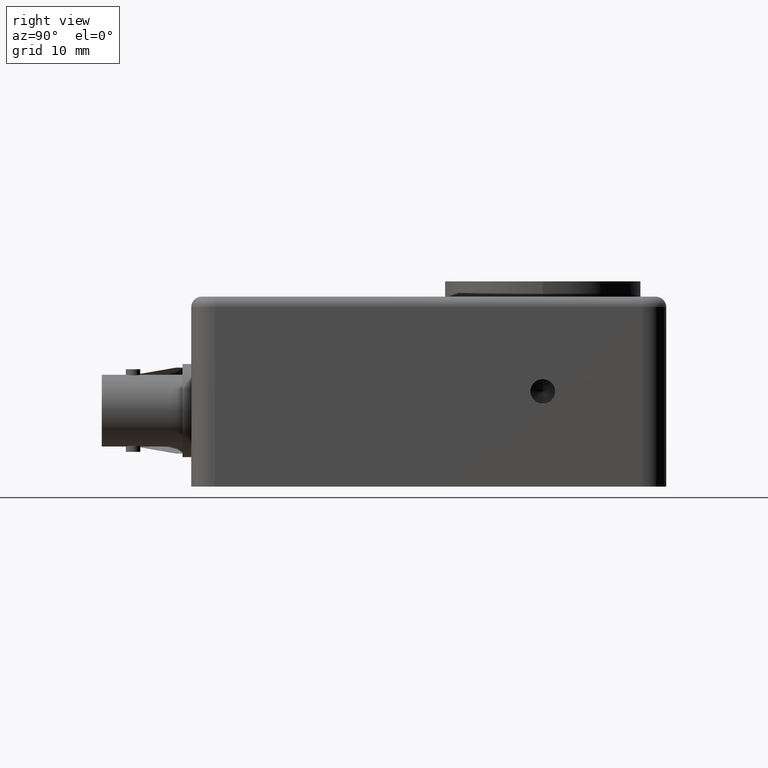
[diagram: clean part render]
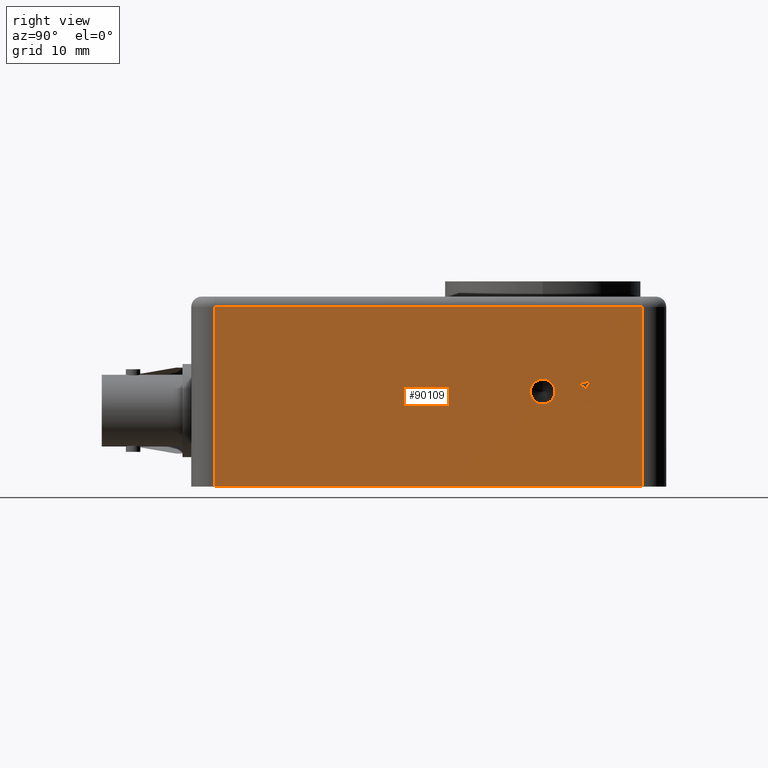
[diagram: same view with one face highlighted and labeled with its STEP entity id]
A machine part, right view. The second image highlights one B-rep face of the part: STEP entity #90109.
In plain terms, the highlighted planar face has unit normal (-1, 0, 0).
Its self-contained STEP definition (entity closure, byte-faithful):
#263 = ORIENTED_EDGE ( 'NONE', *, *, #114979, .T. ) ;
#1182 = EDGE_CURVE ( 'NONE', #93896, #24893, #92600, .T. ) ;
#1186 = CARTESIAN_POINT ( 'NONE',  ( 50.79999999999999700, 51.84900878906250900, 12.84817223182091600 ) ) ;
#1234 = AXIS2_PLACEMENT_3D ( 'NONE', #87532, #27407, #97653 ) ;
#1742 = ORIENTED_EDGE ( 'NONE', *, *, #40965, .T. ) ;
#1819 = CARTESIAN_POINT ( 'NONE',  ( 50.79999999999999700, 53.01463034605370000, 13.02597891000601000 ) ) ;
#1941 = EDGE_CURVE ( 'NONE', #111609, #121612, #109748, .T. ) ;
#3223 = FACE_BOUND ( 'NONE', #78868, .T. ) ;
#3883 = LINE ( 'NONE', #97766, #81049 ) ;
#4082 = VECTOR ( 'NONE', #27273, 1000.000000000000000 ) ;
#4165 = CARTESIAN_POINT ( 'NONE',  ( 50.79999999999999700, 53.39000000000001500, 12.63085295848357600 ) ) ;
#4315 = LINE ( 'NONE', #105300, #31183 ) ;
#4997 = CARTESIAN_POINT ( 'NONE',  ( 50.80000000000002600, 53.00050867909609300, 12.05985116965619700 ) ) ;
#5575 = LINE ( 'NONE', #27299, #59178 ) ;
#6118 = VECTOR ( 'NONE', #31743, 1000.000000000000000 ) ;
#6370 = EDGE_CURVE ( 'NONE', #50864, #97844, #86501, .T. ) ;
#6762 = ORIENTED_EDGE ( 'NONE', *, *, #47579, .T. ) ;
#6820 = VERTEX_POINT ( 'NONE', #109908 ) ;
#7238 = CARTESIAN_POINT ( 'NONE',  ( 50.79999999999999700, 53.39000000000001500, 11.36644991361178100 ) ) ;
#7703 = LINE ( 'NONE', #78571, #34556 ) ;
#8018 = VECTOR ( 'NONE', #23353, 1000.000000000000000 ) ;
#8026 = DIRECTION ( 'NONE',  ( 0.0000000000000000000, -0.9542223647567404900, -0.2990981086500783000 ) ) ;
#8139 = DIRECTION ( 'NONE',  ( 0.0000000000000000000, 0.9537054296867861800, -0.3007423372023678700 ) ) ;
#8274 = ORIENTED_EDGE ( 'NONE', *, *, #1941, .T. ) ;
#9249 = CARTESIAN_POINT ( 'NONE',  ( 50.79999999999999700, 52.81706737029247700, 13.89525600335536900 ) ) ;
#9691 = ORIENTED_EDGE ( 'NONE', *, *, #113275, .T. ) ;
#9730 = B_SPLINE_CURVE_WITH_KNOTS ( 'NONE', 3,
 ( #55276, #115318, #65280, #4997, #75388, #15206, #85491, #25312, #95587, #35444, #105714 ),
 .UNSPECIFIED., .F., .F.,
 ( 4, 1, 1, 1, 1, 1, 1, 1, 4 ),
 ( 0.0000000000000000000, 0.1625255217041981800, 0.3143148980392358500, 0.4549784905465674200, 0.5845192373661913800, 0.7045671033090664700, 0.8134949897289298600, 0.9116812596825915000, 1.000000000000000000 ),
 .UNSPECIFIED. ) ;
#10442 = CARTESIAN_POINT ( 'NONE',  ( 50.79999999999999700, 53.39000000000001500, 12.63085295848357600 ) ) ;
#10480 = EDGE_CURVE ( 'NONE', #48661, #90205, #30637, .T. ) ;
#10806 = AXIS2_PLACEMENT_3D ( 'NONE', #109630, #49501, #119701 ) ;
#11200 = ORIENTED_EDGE ( 'NONE', *, *, #92336, .T. ) ;
#11281 = CARTESIAN_POINT ( 'NONE',  ( 50.79999999999999700, 53.15662873488207700, 12.10731107271634800 ) ) ;
#11624 = ORIENTED_EDGE ( 'NONE', *, *, #39245, .T. ) ;
#13196 = VECTOR ( 'NONE', #82501, 1000.000000000000000 ) ;
#13576 = LINE ( 'NONE', #1186, #117281 ) ;
#13662 = VECTOR ( 'NONE', #53393, 1000.000000000000100 ) ;
#13751 = LINE ( 'NONE', #4165, #117458 ) ;
#14542 = VERTEX_POINT ( 'NONE', #31513 ) ;
#14719 = VERTEX_POINT ( 'NONE', #76267 ) ;
#15206 = CARTESIAN_POINT ( 'NONE',  ( 50.80000000000002600, 53.06177342757432300, 12.07865284460011600 ) ) ;
#16147 = VERTEX_POINT ( 'NONE', #100775 ) ;
#16168 = VECTOR ( 'NONE', #31442, 1000.000000000000000 ) ;
#16439 = CARTESIAN_POINT ( 'NONE',  ( 50.79999999999999700, 53.39000000000001500, 11.58376918694912000 ) ) ;
#16548 = CARTESIAN_POINT ( 'NONE',  ( 50.79999999999999700, 51.84900878906250900, 11.69335490006667100 ) ) ;
#17294 = VECTOR ( 'NONE', #54353, 1000.000000000000000 ) ;
#18137 = ORIENTED_EDGE ( 'NONE', *, *, #56225, .T. ) ;
#18256 = CARTESIAN_POINT ( 'NONE',  ( 50.79999999999999700, 51.84900878906250900, 12.52404547471266800 ) ) ;
#18984 = CARTESIAN_POINT ( 'NONE',  ( 50.79999999999999700, 60.32500000000000300, 0.0000000000000000000 ) ) ;
#19401 = VECTOR ( 'NONE', #8026, 1000.000000000000200 ) ;
#19899 = VERTEX_POINT ( 'NONE', #113420 ) ;
#20401 = VERTEX_POINT ( 'NONE', #30770 ) ;
#20407 = B_SPLINE_CURVE_WITH_KNOTS ( 'NONE', 3,
 ( #11281, #71515, #61440, #81649, #21453, #91716, #31564, #101833, #41677, #111920, #51816 ),
 .UNSPECIFIED., .F., .F.,
 ( 4, 1, 1, 1, 1, 1, 1, 1, 4 ),
 ( 0.0000000000000000000, 0.08920477023325861000, 0.1898334556643427300, 0.2992325919749805300, 0.4192609378429036900, 0.5492073901909311200, 0.6890743636843575900, 0.8395791979483122600, 1.000000000000000000 ),
 .UNSPECIFIED. ) ;
#20624 = VERTEX_POINT ( 'NONE', #7238 ) ;
#20876 = VERTEX_POINT ( 'NONE', #39411 ) ;
#21207 = CARTESIAN_POINT ( 'NONE',  ( 50.79999999999999700, 53.39000000000001500, 12.21967501518054000 ) ) ;
#21453 = CARTESIAN_POINT ( 'NONE',  ( 50.80000000000001100, 53.08225049739456100, 12.12935888250398600 ) ) ;
#21529 = EDGE_CURVE ( 'NONE', #32920, #109498, #61633, .T. ) ;
#21953 = DIRECTION ( 'NONE',  ( 0.0000000000000000000, 1.000000000000000000, 0.0000000000000000000 ) ) ;
#23340 = CARTESIAN_POINT ( 'NONE',  ( 50.79999999999999700, 53.39000000000001500, 13.69769302759415400 ) ) ;
#23353 = DIRECTION ( 'NONE',  ( 0.0000000000000000000, 1.000000000000000000, 0.0000000000000000000 ) ) ;
#24893 = VERTEX_POINT ( 'NONE', #45958 ) ;
#24971 = EDGE_CURVE ( 'NONE', #62225, #16147, #42192, .T. ) ;
#25312 = CARTESIAN_POINT ( 'NONE',  ( 50.80000000000003300, 53.11354737319423700, 12.09434083099387500 ) ) ;
#25336 = ORIENTED_EDGE ( 'NONE', *, *, #104084, .T. ) ;
#26803 = CARTESIAN_POINT ( 'NONE',  ( 50.79999999999999700, 53.39000000000001500, 12.84817223182091600 ) ) ;
#26840 = CARTESIAN_POINT ( 'NONE',  ( 50.79999999999999700, 53.01463034605370000, 13.69769302759415400 ) ) ;
#27273 = DIRECTION ( 'NONE',  ( 0.0000000000000000000, 0.0000000000000000000, -1.000000000000000000 ) ) ;
#27299 = CARTESIAN_POINT ( 'NONE',  ( 50.79999999999999700, 52.08608435997597800, 11.58376918694912000 ) ) ;
#27407 = DIRECTION ( 'NONE',  ( -1.000000000000000000, 0.0000000000000000000, 0.0000000000000000000 ) ) ;
#29983 = EDGE_CURVE ( 'NONE', #68009, #94733, #72824, .T. ) ;
#30095 = FACE_OUTER_BOUND ( 'NONE', #91448, .T. ) ;
#30637 = LINE ( 'NONE', #129192, #84083 ) ;
#30770 = CARTESIAN_POINT ( 'NONE',  ( 50.79999999999999700, 46.99000000000000200, 11.05000000000000100 ) ) ;
#30776 = EDGE_CURVE ( 'NONE', #51454, #48661, #34078, .T. ) ;
#31183 = VECTOR ( 'NONE', #55289, 1000.000000000000000 ) ;
#31442 = DIRECTION ( 'NONE',  ( 0.0000000000000000000, 0.0000000000000000000, 1.000000000000000000 ) ) ;
#31513 = CARTESIAN_POINT ( 'NONE',  ( 50.79999999999999700, 52.81706737029247700, 13.89525600335536900 ) ) ;
#31564 = CARTESIAN_POINT ( 'NONE',  ( 50.80000000000001800, 53.02124263738453200, 12.14865967371087800 ) ) ;
#31743 = DIRECTION ( 'NONE',  ( 0.0000000000000000000, 1.000000000000000000, 0.0000000000000000000 ) ) ;
#32882 = DIRECTION ( 'NONE',  ( 0.0000000000000000000, 1.000000000000000000, 0.0000000000000000000 ) ) ;
#32920 = VERTEX_POINT ( 'NONE', #128685 ) ;
#34078 = LINE ( 'NONE', #26840, #4082 ) ;
#34556 = VECTOR ( 'NONE', #8139, 999.9999999999998900 ) ;
#35444 = CARTESIAN_POINT ( 'NONE',  ( 50.80000000000001100, 53.14993335621799300, 12.10537956312075500 ) ) ;
#35561 = CARTESIAN_POINT ( 'NONE',  ( 50.79999999999999700, 51.84900878906250900, 11.69335490006667100 ) ) ;
#35957 = EDGE_CURVE ( 'NONE', #106494, #83055, #20407, .T. ) ;
#35988 = CARTESIAN_POINT ( 'NONE',  ( 50.79999999999999700, 3.174999999999999800, 24.00300000000000000 ) ) ;
#36028 = CARTESIAN_POINT ( 'NONE',  ( 50.79999999999999700, 53.01463034605370000, 13.89525600335536900 ) ) ;
#36668 = DIRECTION ( 'NONE',  ( 0.0000000000000000000, 0.0000000000000000000, -1.000000000000000000 ) ) ;
#37031 = LINE ( 'NONE', #16548, #63747 ) ;
#37762 = ORIENTED_EDGE ( 'NONE', *, *, #126794, .F. ) ;
#37950 = LINE ( 'NONE', #9249, #91367 ) ;
#38586 = ORIENTED_EDGE ( 'NONE', *, *, #120956, .T. ) ;
#38753 = CARTESIAN_POINT ( 'NONE',  ( 50.79999999999999700, 53.01463034605370000, 13.69769302759415400 ) ) ;
#39245 = EDGE_CURVE ( 'NONE', #109498, #41926, #102051, .T. ) ;
#39411 = CARTESIAN_POINT ( 'NONE',  ( 50.79999999999999700, 51.86876508663863900, 13.75696192032251700 ) ) ;
#40583 = VECTOR ( 'NONE', #93607, 1000.000000000000000 ) ;
#40965 = EDGE_CURVE ( 'NONE', #49859, #6820, #13751, .T. ) ;
#41377 = VECTOR ( 'NONE', #36668, 1000.000000000000000 ) ;
#41506 = CARTESIAN_POINT ( 'NONE',  ( 50.79999999999999700, 52.93035738920555400, 12.03785533905029400 ) ) ;
#41677 = CARTESIAN_POINT ( 'NONE',  ( 50.80000000000000400, 52.95025666909091200, 12.17092567420790600 ) ) ;
#41926 = VERTEX_POINT ( 'NONE', #117678 ) ;
#42112 = DIRECTION ( 'NONE',  ( 0.0000000000000000000, 0.0000000000000000000, -1.000000000000000000 ) ) ;
#42192 = LINE ( 'NONE', #18256, #95578 ) ;
#42975 = ORIENTED_EDGE ( 'NONE', *, *, #73848, .T. ) ;
#43004 = CARTESIAN_POINT ( 'NONE',  ( 50.79999999999999700, 51.86876508663863900, 13.89525600335536900 ) ) ;
#43673 = CARTESIAN_POINT ( 'NONE',  ( 50.79999999999999700, 52.91183586022793900, 12.18294064937493800 ) ) ;
#44357 = DIRECTION ( 'NONE',  ( -0.0000000000000000000, -0.0000000000000000000, 1.000000000000000000 ) ) ;
#44549 = VECTOR ( 'NONE', #50683, 1000.000000000000000 ) ;
#45221 = ORIENTED_EDGE ( 'NONE', *, *, #21529, .T. ) ;
#45958 = CARTESIAN_POINT ( 'NONE',  ( 50.79999999999999700, 53.39000000000001500, 13.69769302759415400 ) ) ;
#46066 = LINE ( 'NONE', #81525, #16168 ) ;
#46165 = DIRECTION ( 'NONE',  ( 0.0000000000000000000, 0.0000000000000000000, -1.000000000000000000 ) ) ;
#46582 = CARTESIAN_POINT ( 'NONE',  ( 50.79999999999999700, 53.01463034605370000, 14.09281897911658800 ) ) ;
#47460 = ORIENTED_EDGE ( 'NONE', *, *, #1182, .T. ) ;
#47579 = EDGE_CURVE ( 'NONE', #121612, #93896, #86354, .T. ) ;
#48661 = VERTEX_POINT ( 'NONE', #1819 ) ;
#49272 = EDGE_CURVE ( 'NONE', #77368, #111609, #67556, .T. ) ;
#49373 = LINE ( 'NONE', #43004, #76042 ) ;
#49501 = DIRECTION ( 'NONE',  ( 1.000000000000000000, -0.0000000000000000000, -0.0000000000000000000 ) ) ;
#49859 = VERTEX_POINT ( 'NONE', #10442 ) ;
#50683 = DIRECTION ( 'NONE',  ( 0.0000000000000000000, 0.0000000000000000000, -1.000000000000000000 ) ) ;
#50864 = VERTEX_POINT ( 'NONE', #110801 ) ;
#51201 = ORIENTED_EDGE ( 'NONE', *, *, #6370, .T. ) ;
#51454 = VERTEX_POINT ( 'NONE', #38753 ) ;
#51816 = CARTESIAN_POINT ( 'NONE',  ( 50.79999999999999700, 52.91183586022793900, 12.18294064937493800 ) ) ;
#51858 = VERTEX_POINT ( 'NONE', #35988 ) ;
#52646 = VERTEX_POINT ( 'NONE', #117265 ) ;
#53072 = DIRECTION ( 'NONE',  ( 1.000000000000000000, -0.0000000000000000000, -0.0000000000000000000 ) ) ;
#53393 = DIRECTION ( 'NONE',  ( 0.0000000000000000000, -0.7920101971969320000, 0.6105078603393053700 ) ) ;
#53691 = VERTEX_POINT ( 'NONE', #41506 ) ;
#54353 = DIRECTION ( 'NONE',  ( 0.0000000000000000000, 1.000000000000000000, 0.0000000000000000000 ) ) ;
#55276 = CARTESIAN_POINT ( 'NONE',  ( 50.79999999999999700, 52.93035738920555400, 12.03785533905029400 ) ) ;
#55289 = DIRECTION ( 'NONE',  ( 0.0000000000000000000, 0.0000000000000000000, -1.000000000000000000 ) ) ;
#56225 = EDGE_CURVE ( 'NONE', #53691, #106494, #9730, .T. ) ;
#56898 = DIRECTION ( 'NONE',  ( 0.0000000000000000000, -0.9521637063517167700, 0.3055884099676581800 ) ) ;
#58224 = VECTOR ( 'NONE', #78459, 1000.000000000000000 ) ;
#58303 = CARTESIAN_POINT ( 'NONE',  ( 50.79999999999999700, 53.39000000000001500, 11.99247759305514200 ) ) ;
#58545 = LINE ( 'NONE', #66905, #82085 ) ;
#59178 = VECTOR ( 'NONE', #97537, 1000.000000000000000 ) ;
#59411 = ORIENTED_EDGE ( 'NONE', *, *, #10480, .T. ) ;
#60247 = EDGE_CURVE ( 'NONE', #20876, #14719, #46066, .T. ) ;
#61181 = EDGE_CURVE ( 'NONE', #19899, #49859, #95947, .T. ) ;
#61334 = AXIS2_PLACEMENT_3D ( 'NONE', #113142, #53072, #123273 ) ;
#61440 = CARTESIAN_POINT ( 'NONE',  ( 50.80000000000000400, 53.13376699398033800, 12.11404033021927700 ) ) ;
#61633 = LINE ( 'NONE', #113796, #8018 ) ;
#62225 = VERTEX_POINT ( 'NONE', #120742 ) ;
#63747 = VECTOR ( 'NONE', #66582, 1000.000000000000100 ) ;
#65280 = CARTESIAN_POINT ( 'NONE',  ( 50.79999999999999000, 52.96629757503276900, 12.04897862231336700 ) ) ;
#66126 = EDGE_CURVE ( 'NONE', #20401, #82601, #123491, .T. ) ;
#66504 = CARTESIAN_POINT ( 'NONE',  ( 50.79999999999999700, 53.39000000000001500, 13.89525600335536900 ) ) ;
#66582 = DIRECTION ( 'NONE',  ( 0.0000000000000000000, 0.9528149773632901300, 0.3035516742042331200 ) ) ;
#66905 = CARTESIAN_POINT ( 'NONE',  ( 50.79999999999999700, 52.91183586022793900, 12.18294064937493800 ) ) ;
#67351 = PLANE ( 'NONE',  #1234 ) ;
#67556 = LINE ( 'NONE', #124486, #17294 ) ;
#68009 = VERTEX_POINT ( 'NONE', #94572 ) ;
#68069 = LINE ( 'NONE', #16439, #41377 ) ;
#68227 = CARTESIAN_POINT ( 'NONE',  ( 50.79999999999999700, 52.81706737029247700, 13.02597891000601000 ) ) ;
#68789 = ORIENTED_EDGE ( 'NONE', *, *, #102338, .T. ) ;
#70868 = ORIENTED_EDGE ( 'NONE', *, *, #123483, .T. ) ;
#71515 = CARTESIAN_POINT ( 'NONE',  ( 50.80000000000000400, 53.14932014360318400, 12.10946232589128100 ) ) ;
#72824 = LINE ( 'NONE', #58303, #19401 ) ;
#73848 = EDGE_CURVE ( 'NONE', #20624, #50864, #3883, .T. ) ;
#75388 = CARTESIAN_POINT ( 'NONE',  ( 50.79999999999996900, 53.03230023188007200, 12.06974336500306900 ) ) ;
#76042 = VECTOR ( 'NONE', #32882, 1000.000000000000000 ) ;
#76267 = CARTESIAN_POINT ( 'NONE',  ( 50.79999999999999700, 51.86876508663863900, 13.89525600335536900 ) ) ;
#77368 = VERTEX_POINT ( 'NONE', #126722 ) ;
#77427 = ORIENTED_EDGE ( 'NONE', *, *, #30776, .T. ) ;
#78420 = CARTESIAN_POINT ( 'NONE',  ( 50.79999999999999700, 53.01463034605370000, 13.89525600335536900 ) ) ;
#78459 = DIRECTION ( 'NONE',  ( 0.0000000000000000000, 0.0000000000000000000, 1.000000000000000000 ) ) ;
#78571 = CARTESIAN_POINT ( 'NONE',  ( 50.79999999999999700, 52.08608435997597800, 12.63085295848357600 ) ) ;
#78868 = EDGE_LOOP ( 'NONE', ( #47460, #122747, #77427, #59411, #100863, #79175, #83534, #124715, #87866, #8274, #6762 ) ) ;
#79043 = CARTESIAN_POINT ( 'NONE',  ( 50.79999999999999700, 53.01463034605370000, 14.09281897911658800 ) ) ;
#79175 = ORIENTED_EDGE ( 'NONE', *, *, #60247, .T. ) ;
#79347 = CARTESIAN_POINT ( 'NONE',  ( 50.79999999999999700, 51.84900878906250900, 11.36644991361178100 ) ) ;
#79640 = DIRECTION ( 'NONE',  ( 0.0000000000000000000, 0.0000000000000000000, 1.000000000000000000 ) ) ;
#80423 = EDGE_CURVE ( 'NONE', #90205, #20876, #90658, .T. ) ;
#81049 = VECTOR ( 'NONE', #118377, 1000.000000000000000 ) ;
#81525 = CARTESIAN_POINT ( 'NONE',  ( 50.79999999999999700, 51.86876508663863900, 13.75696192032251700 ) ) ;
#81649 = CARTESIAN_POINT ( 'NONE',  ( 50.79999999999997600, 53.10931233230842700, 12.12146200705019600 ) ) ;
#82085 = VECTOR ( 'NONE', #56898, 1000.000000000000100 ) ;
#82501 = DIRECTION ( 'NONE',  ( -0.0000000000000000000, -1.000000000000000000, -0.0000000000000000000 ) ) ;
#82601 = VERTEX_POINT ( 'NONE', #125005 ) ;
#83055 = VERTEX_POINT ( 'NONE', #43673 ) ;
#83058 = VECTOR ( 'NONE', #42112, 1000.000000000000000 ) ;
#83534 = ORIENTED_EDGE ( 'NONE', *, *, #130014, .T. ) ;
#83543 = FACE_BOUND ( 'NONE', #127350, .T. ) ;
#83903 = CARTESIAN_POINT ( 'NONE',  ( 50.79999999999999700, 52.08608435997597800, 11.58376918694912000 ) ) ;
#84083 = VECTOR ( 'NONE', #112175, 1000.000000000000000 ) ;
#85491 = CARTESIAN_POINT ( 'NONE',  ( 50.79999999999997600, 53.08878193310959400, 12.08706083560422200 ) ) ;
#86354 = LINE ( 'NONE', #78420, #6118 ) ;
#86501 = LINE ( 'NONE', #79347, #58224 ) ;
#87532 = CARTESIAN_POINT ( 'NONE',  ( 50.79999999999999700, 0.0000000000000000000, 25.39999999999999900 ) ) ;
#87866 = ORIENTED_EDGE ( 'NONE', *, *, #49272, .T. ) ;
#88449 = DIRECTION ( 'NONE',  ( 0.0000000000000000000, 0.0000000000000000000, 1.000000000000000000 ) ) ;
#90109 = ADVANCED_FACE ( 'NONE', ( #113377, #83543, #30095, #3223 ), #67351, .F. ) ;
#90205 = VERTEX_POINT ( 'NONE', #68227 ) ;
#90658 = LINE ( 'NONE', #113463, #13662 ) ;
#90814 = LINE ( 'NONE', #23340, #40583 ) ;
#91354 = EDGE_CURVE ( 'NONE', #24893, #51454, #90814, .T. ) ;
#91367 = VECTOR ( 'NONE', #79640, 1000.000000000000000 ) ;
#91448 = EDGE_LOOP ( 'NONE', ( #11624, #105830, #68789, #45221 ) ) ;
#91716 = CARTESIAN_POINT ( 'NONE',  ( 50.80000000000000400, 53.05304663804863500, 12.13880902185698000 ) ) ;
#92153 = CARTESIAN_POINT ( 'NONE',  ( 50.79999999999999700, 0.0000000000000000000, 24.00300000000000000 ) ) ;
#92336 = EDGE_CURVE ( 'NONE', #83055, #62225, #58545, .T. ) ;
#92600 = LINE ( 'NONE', #105024, #119297 ) ;
#93393 = LINE ( 'NONE', #92153, #13196 ) ;
#93607 = DIRECTION ( 'NONE',  ( 0.0000000000000000000, -1.000000000000000000, 0.0000000000000000000 ) ) ;
#93896 = VERTEX_POINT ( 'NONE', #66504 ) ;
#94387 = CARTESIAN_POINT ( 'NONE',  ( 50.79999999999999700, 60.32500000000000300, 25.39999999999999900 ) ) ;
#94572 = CARTESIAN_POINT ( 'NONE',  ( 50.79999999999999700, 53.39000000000001500, 11.99247759305514200 ) ) ;
#94733 = VERTEX_POINT ( 'NONE', #83903 ) ;
#95138 = VERTEX_POINT ( 'NONE', #107196 ) ;
#95578 = VECTOR ( 'NONE', #88449, 1000.000000000000000 ) ;
#95587 = CARTESIAN_POINT ( 'NONE',  ( 50.79999999999999000, 53.13579454873468000, 12.10130074343117500 ) ) ;
#95947 = LINE ( 'NONE', #26803, #108547 ) ;
#97037 = DIRECTION ( 'NONE',  ( 0.0000000000000000000, 0.0000000000000000000, -1.000000000000000000 ) ) ;
#97537 = DIRECTION ( 'NONE',  ( 0.0000000000000000000, 1.000000000000000000, 0.0000000000000000000 ) ) ;
#97653 = DIRECTION ( 'NONE',  ( 0.0000000000000000000, 0.0000000000000000000, 1.000000000000000000 ) ) ;
#97766 = CARTESIAN_POINT ( 'NONE',  ( 50.79999999999999700, 53.39000000000001500, 11.36644991361178100 ) ) ;
#97844 = VERTEX_POINT ( 'NONE', #35561 ) ;
#100775 = CARTESIAN_POINT ( 'NONE',  ( 50.79999999999999700, 51.84900878906250900, 12.84817223182091600 ) ) ;
#100863 = ORIENTED_EDGE ( 'NONE', *, *, #80423, .T. ) ;
#101314 = ORIENTED_EDGE ( 'NONE', *, *, #66126, .F. ) ;
#101833 = CARTESIAN_POINT ( 'NONE',  ( 50.79999999999998300, 52.98686490759747200, 12.15899921484995400 ) ) ;
#101848 = EDGE_LOOP ( 'NONE', ( #38586, #42975, #51201, #70868, #18137, #129213, #11200, #101903, #263, #129140, #1742, #122128, #25336, #109152, #9691 ) ) ;
#101903 = ORIENTED_EDGE ( 'NONE', *, *, #24971, .T. ) ;
#102051 = LINE ( 'NONE', #94387, #125562 ) ;
#102338 = EDGE_CURVE ( 'NONE', #51858, #32920, #4315, .T. ) ;
#104084 = EDGE_CURVE ( 'NONE', #95138, #68009, #121512, .T. ) ;
#104842 = CARTESIAN_POINT ( 'NONE',  ( 50.79999999999999700, 53.15662873488207700, 12.10731107271634800 ) ) ;
#105024 = CARTESIAN_POINT ( 'NONE',  ( 50.79999999999999700, 53.39000000000001500, 13.89525600335536900 ) ) ;
#105300 = CARTESIAN_POINT ( 'NONE',  ( 50.79999999999999700, 3.174999999999999800, 25.39999999999999900 ) ) ;
#105714 = CARTESIAN_POINT ( 'NONE',  ( 50.79999999999999700, 53.15662873488207700, 12.10731107271634800 ) ) ;
#105830 = ORIENTED_EDGE ( 'NONE', *, *, #115739, .T. ) ;
#106494 = VERTEX_POINT ( 'NONE', #104842 ) ;
#107196 = CARTESIAN_POINT ( 'NONE',  ( 50.79999999999999700, 53.39000000000001500, 12.21967501518054000 ) ) ;
#108547 = VECTOR ( 'NONE', #97037, 1000.000000000000000 ) ;
#109152 = ORIENTED_EDGE ( 'NONE', *, *, #29983, .T. ) ;
#109498 = VERTEX_POINT ( 'NONE', #18984 ) ;
#109630 = CARTESIAN_POINT ( 'NONE',  ( 50.79999999999999700, 46.99000000000000200, 12.69999999999999900 ) ) ;
#109748 = LINE ( 'NONE', #46582, #83058 ) ;
#109908 = CARTESIAN_POINT ( 'NONE',  ( 50.79999999999999700, 52.08608435997597800, 12.63085295848357600 ) ) ;
#110801 = CARTESIAN_POINT ( 'NONE',  ( 50.79999999999999700, 51.84900878906250900, 11.36644991361178100 ) ) ;
#111609 = VERTEX_POINT ( 'NONE', #79043 ) ;
#111844 = CIRCLE ( 'NONE', #10806, 1.649999999999998600 ) ;
#111920 = CARTESIAN_POINT ( 'NONE',  ( 50.79999999999999000, 52.92491222290210100, 12.17885140249401700 ) ) ;
#112175 = DIRECTION ( 'NONE',  ( 0.0000000000000000000, -1.000000000000000000, 0.0000000000000000000 ) ) ;
#113142 = CARTESIAN_POINT ( 'NONE',  ( 50.79999999999999700, 46.99000000000000200, 12.69999999999999900 ) ) ;
#113275 = EDGE_CURVE ( 'NONE', #94733, #52646, #5575, .T. ) ;
#113377 = FACE_BOUND ( 'NONE', #101848, .T. ) ;
#113420 = CARTESIAN_POINT ( 'NONE',  ( 50.79999999999999700, 53.39000000000001500, 12.84817223182091600 ) ) ;
#113463 = CARTESIAN_POINT ( 'NONE',  ( 50.79999999999999700, 52.81706737029247700, 13.02597891000601000 ) ) ;
#113796 = CARTESIAN_POINT ( 'NONE',  ( 50.79999999999999700, 0.0000000000000000000, 0.0000000000000000000 ) ) ;
#114491 = DIRECTION ( 'NONE',  ( 0.0000000000000000000, -1.000000000000000000, 0.0000000000000000000 ) ) ;
#114979 = EDGE_CURVE ( 'NONE', #16147, #19899, #13576, .T. ) ;
#115318 = CARTESIAN_POINT ( 'NONE',  ( 50.79999999999999000, 52.94260718433587700, 12.04164658102673400 ) ) ;
#115739 = EDGE_CURVE ( 'NONE', #41926, #51858, #93393, .T. ) ;
#116517 = EDGE_CURVE ( 'NONE', #14542, #77368, #37950, .T. ) ;
#117265 = CARTESIAN_POINT ( 'NONE',  ( 50.79999999999999700, 53.39000000000001500, 11.58376918694912000 ) ) ;
#117281 = VECTOR ( 'NONE', #21953, 1000.000000000000000 ) ;
#117458 = VECTOR ( 'NONE', #114491, 1000.000000000000000 ) ;
#117477 = EDGE_CURVE ( 'NONE', #6820, #95138, #7703, .T. ) ;
#117678 = CARTESIAN_POINT ( 'NONE',  ( 50.79999999999999700, 60.32500000000000300, 24.00300000000000000 ) ) ;
#118377 = DIRECTION ( 'NONE',  ( 0.0000000000000000000, -1.000000000000000000, 0.0000000000000000000 ) ) ;
#119297 = VECTOR ( 'NONE', #46165, 1000.000000000000000 ) ;
#119701 = DIRECTION ( 'NONE',  ( 0.0000000000000000000, 0.0000000000000000000, -1.000000000000000000 ) ) ;
#120742 = CARTESIAN_POINT ( 'NONE',  ( 50.79999999999999700, 51.84900878906250900, 12.52404547471266800 ) ) ;
#120956 = EDGE_CURVE ( 'NONE', #52646, #20624, #68069, .T. ) ;
#121512 = LINE ( 'NONE', #21207, #44549 ) ;
#121612 = VERTEX_POINT ( 'NONE', #36028 ) ;
#122128 = ORIENTED_EDGE ( 'NONE', *, *, #117477, .T. ) ;
#122747 = ORIENTED_EDGE ( 'NONE', *, *, #91354, .T. ) ;
#123273 = DIRECTION ( 'NONE',  ( 0.0000000000000000000, 0.0000000000000000000, -1.000000000000000000 ) ) ;
#123483 = EDGE_CURVE ( 'NONE', #97844, #53691, #37031, .T. ) ;
#123491 = CIRCLE ( 'NONE', #61334, 1.649999999999998600 ) ;
#124486 = CARTESIAN_POINT ( 'NONE',  ( 50.79999999999999700, 52.81706737029247700, 14.09281897911658800 ) ) ;
#124715 = ORIENTED_EDGE ( 'NONE', *, *, #116517, .T. ) ;
#125005 = CARTESIAN_POINT ( 'NONE',  ( 50.79999999999999700, 46.99000000000000200, 14.34999999999999800 ) ) ;
#125562 = VECTOR ( 'NONE', #44357, 1000.000000000000000 ) ;
#126722 = CARTESIAN_POINT ( 'NONE',  ( 50.79999999999999700, 52.81706737029247700, 14.09281897911658800 ) ) ;
#126794 = EDGE_CURVE ( 'NONE', #82601, #20401, #111844, .T. ) ;
#127350 = EDGE_LOOP ( 'NONE', ( #101314, #37762 ) ) ;
#128685 = CARTESIAN_POINT ( 'NONE',  ( 50.79999999999999700, 3.174999999999999800, 0.0000000000000000000 ) ) ;
#129140 = ORIENTED_EDGE ( 'NONE', *, *, #61181, .T. ) ;
#129192 = CARTESIAN_POINT ( 'NONE',  ( 50.79999999999999700, 53.01463034605370000, 13.02597891000601000 ) ) ;
#129213 = ORIENTED_EDGE ( 'NONE', *, *, #35957, .T. ) ;
#130014 = EDGE_CURVE ( 'NONE', #14719, #14542, #49373, .T. ) ;